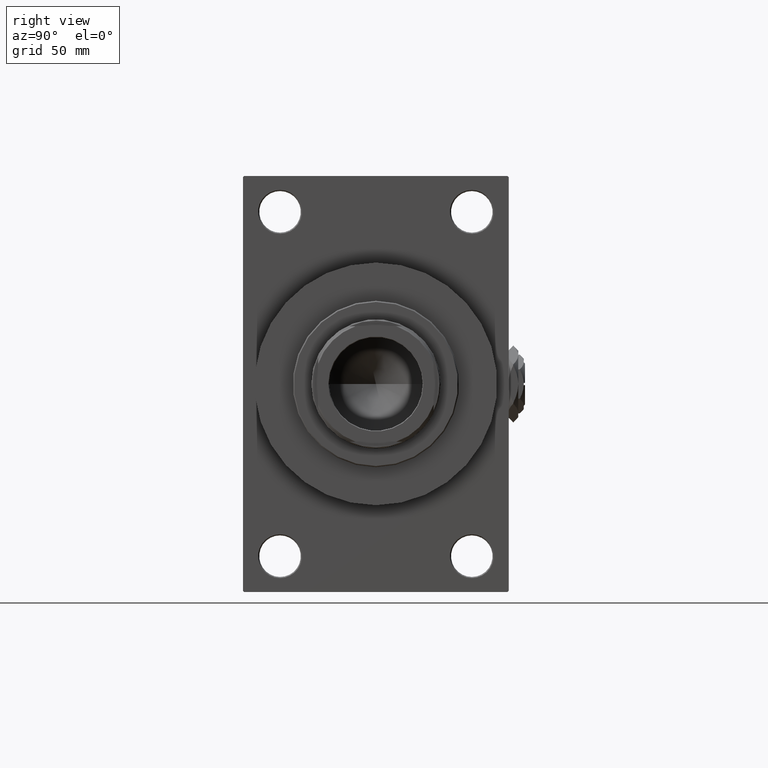
[diagram: clean part render]
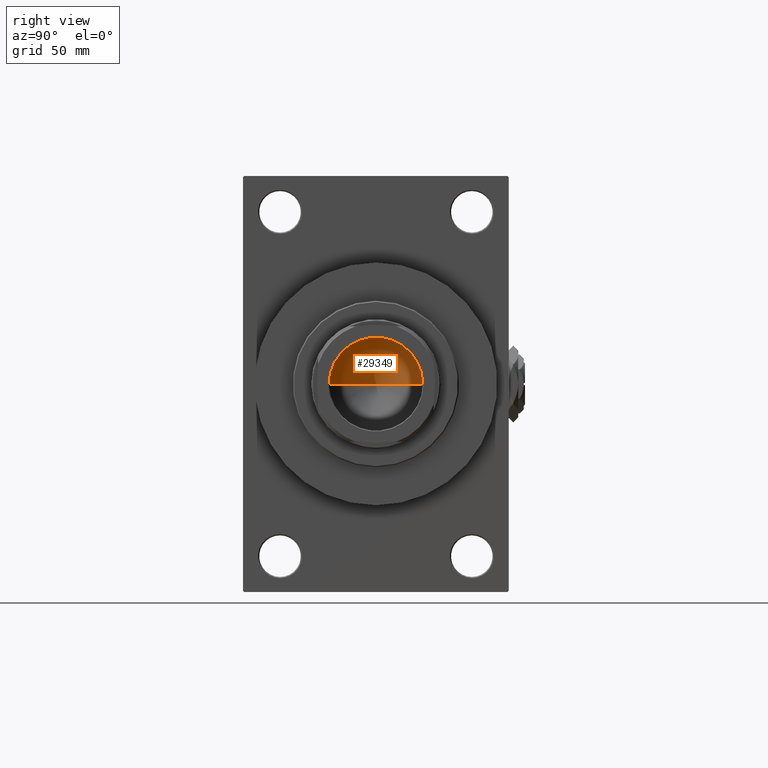
[diagram: same view with one face highlighted and labeled with its STEP entity id]
A machine part, right view. The second image highlights one B-rep face of the part: STEP entity #29349.
In plain terms, the highlighted conical surface has half-angle 59 deg.
Its self-contained STEP definition (entity closure, byte-faithful):
#2581 = LINE ( 'NONE', #33794, #18148 ) ;
#5818 = DIRECTION ( 'NONE',  ( 1.000000000000000000, 0.000000000000000000, 0.000000000000000000 ) ) ;
#6116 = CARTESIAN_POINT ( 'NONE',  ( 20.24999999999998934, 0.000000000000000000, 105.0000000000000142 ) ) ;
#9393 = EDGE_CURVE ( 'NONE', #40594, #18781, #47848, .T. ) ;
#10072 = DIRECTION ( 'NONE',  ( 0.8571673007021115565, 0.000000000000000000, 0.5150380749100554878 ) ) ;
#10376 = DIRECTION ( 'NONE',  ( -0.8571673007021115565, 1.049727191138617710E-16, 0.5150380749100554878 ) ) ;
#10780 = CARTESIAN_POINT ( 'NONE',  ( 0.000000000000000000, 0.000000000000000000, 105.0000000000000142 ) ) ;
#16383 = CARTESIAN_POINT ( 'NONE',  ( -1.584115414415908206E-14, 0.000000000000000000, 92.83257246469187862 ) ) ;
#18148 = VECTOR ( 'NONE', #10376, 1000.000000000000000 ) ;
#18781 = VERTEX_POINT ( 'NONE', #6116 ) ;
#21073 = ORIENTED_EDGE ( 'NONE', *, *, #30651, .T. ) ;
#24649 = AXIS2_PLACEMENT_3D ( 'NONE', #10780, #41770, #38492 ) ;
#28304 = EDGE_CURVE ( 'NONE', #40594, #35080, #2581, .T. ) ;
#29349 = ADVANCED_FACE ( 'NONE', ( #33273 ), #38278, .F. ) ;
#30651 = EDGE_CURVE ( 'NONE', #35080, #18781, #42334, .T. ) ;
#31544 = EDGE_LOOP ( 'NONE', ( #39896, #31966, #21073 ) ) ;
#31966 = ORIENTED_EDGE ( 'NONE', *, *, #28304, .T. ) ;
#33030 = CARTESIAN_POINT ( 'NONE',  ( 0.000000000000000000, 0.000000000000000000, 105.0000000000000142 ) ) ;
#33273 = FACE_OUTER_BOUND ( 'NONE', #31544, .T. ) ;
#33460 = AXIS2_PLACEMENT_3D ( 'NONE', #33030, #40336, #5818 ) ;
#33794 = CARTESIAN_POINT ( 'NONE',  ( -20.24999999999998934, 2.479909768273389117E-15, 105.0000000000000142 ) ) ;
#34374 = VECTOR ( 'NONE', #10072, 1000.000000000000000 ) ;
#35080 = VERTEX_POINT ( 'NONE', #41326 ) ;
#38278 = CONICAL_SURFACE ( 'NONE', #33460, 20.24999999999998934, 1.029744258676652979 ) ;
#38492 = DIRECTION ( 'NONE',  ( 1.000000000000000000, 0.000000000000000000, 0.000000000000000000 ) ) ;
#39896 = ORIENTED_EDGE ( 'NONE', *, *, #9393, .F. ) ;
#40336 = DIRECTION ( 'NONE',  ( -0.000000000000000000, -0.000000000000000000, 1.000000000000000000 ) ) ;
#40594 = VERTEX_POINT ( 'NONE', #16383 ) ;
#41326 = CARTESIAN_POINT ( 'NONE',  ( -20.24999999999998934, 2.479909768273389117E-15, 105.0000000000000142 ) ) ;
#41770 = DIRECTION ( 'NONE',  ( -0.000000000000000000, -0.000000000000000000, 1.000000000000000000 ) ) ;
#42334 = CIRCLE ( 'NONE', #24649, 20.24999999999998934 ) ;
#43827 = CARTESIAN_POINT ( 'NONE',  ( 20.24999999999998934, 0.000000000000000000, 105.0000000000000142 ) ) ;
#47848 = LINE ( 'NONE', #43827, #34374 ) ;